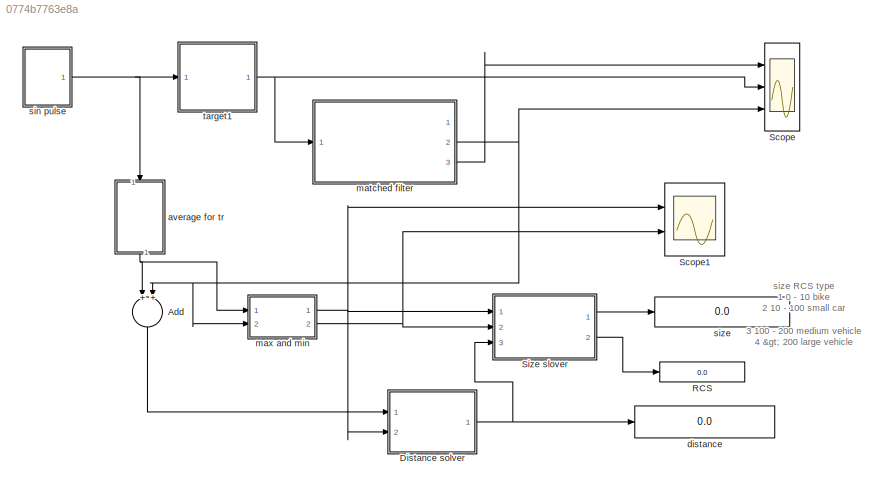
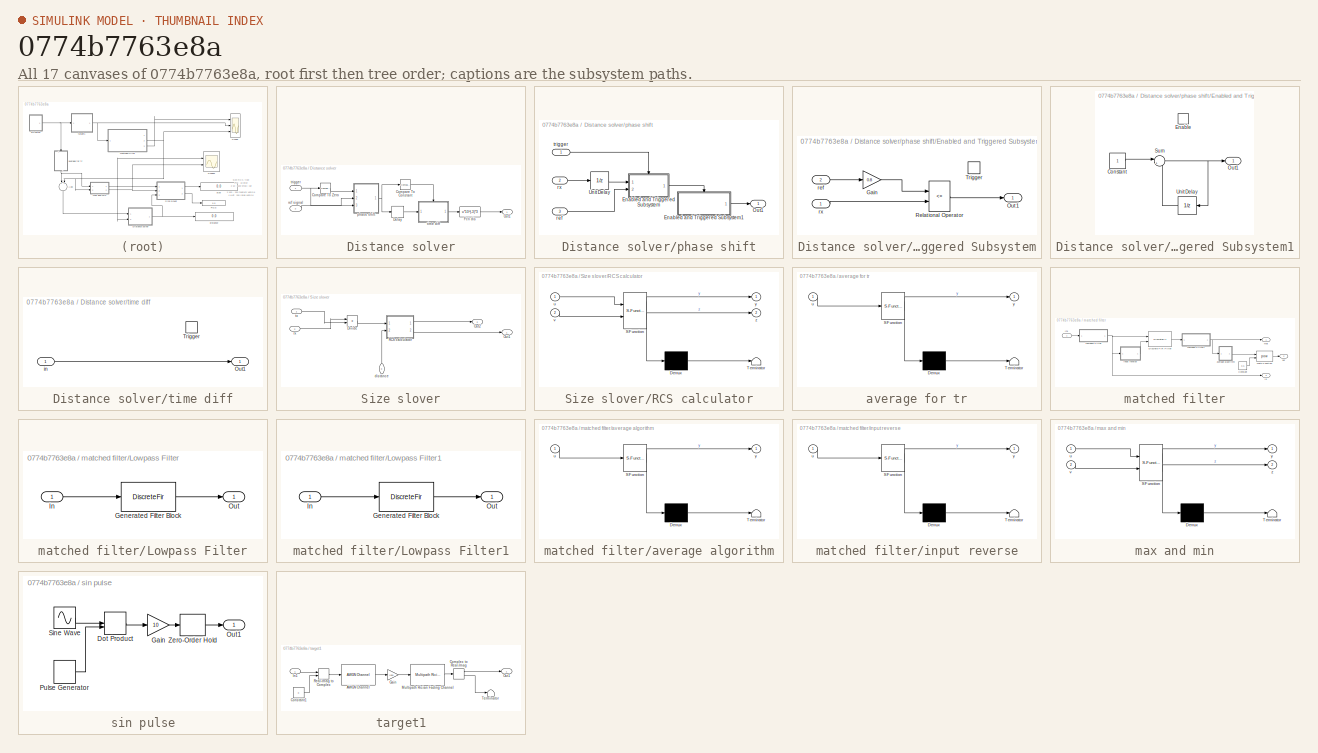
[diagram: thumbnail index - all 17 canvases of the model, root first then tree order]
MODEL slx_0774b7763e8a
KIND model
CONFIG AbsTol = auto
CONFIG EnableMultiTasking = on
CONFIG FixedStep = 2*10^(-11)
CONFIG MaxStep = auto
CONFIG MinStep = auto
CONFIG RelTol = 1e-3
CONFIG SampleTimeConstraint = Unconstrained
CONFIG Solver = FixedStepAuto
CONFIG SolverName = FixedStepAuto
CONFIG StartTime = 0.0
CONFIG StopTime = 10^(-6)
BLOCK [Sum] Add
  InputSameDT = off
  OutDataTypeStr = Inherit: Inherit via internal rule
  Ports = [2, 1]
  SaturateOnIntegerOverflow = off
BLOCK [SubSystem] Distance solver
  Ports = [2, 1]
  RequestExecContextInheritance = off
  Variant = off
BLOCK [Reference] Distance solver/Compare To Constant  REF=simulink/Logic and Bit
Operations/Compare
To Constant
  Ports = [1, 1]
  SourceBlock = simulink/Logic and Bit\nOperations/Compare\nTo Constant
  SourceType = Compare To Constant
BLOCK [Reference] Distance solver/Compare To Zero  REF=simulink/Logic and Bit
Operations/Compare
To Zero
  Ports = [1, 1]
  SourceBlock = simulink/Logic and Bit\nOperations/Compare\nTo Zero
  SourceType = Compare To Zero
BLOCK [Delay] Distance solver/Delay
  DelayLength = 1
  InitialCondition = 0
  InputPortMap = u0
  Ports = [1, 1]
BLOCK [Fcn] Distance solver/Fcn dis
  Expr = u*10^(-3)*3
BLOCK [Outport] Distance solver/Out1
  IconDisplay = Port number
BLOCK [SubSystem] Distance solver/phase shift
  Ports = [3, 1]
  RequestExecContextInheritance = off
  Variant = off
BLOCK [SubSystem] Distance solver/phase shift/Enabled and Triggered Subsystem
  Ports = [2, 1, 0, 1]
  RequestExecContextInheritance = off
  TreatAsAtomicUnit = on
  Variant = off
BLOCK [Gain] Distance solver/phase shift/Enabled and Triggered Subsystem/Gain
  Gain = 0.8
  OutDataTypeStr = Inherit: Inherit via internal rule
  ParamDataTypeStr = Inherit: Inherit via internal rule
  SaturateOnIntegerOverflow = off
BLOCK [Outport] Distance solver/phase shift/Enabled and Triggered Subsystem/Out1
  IconDisplay = Port number
BLOCK [RelationalOperator] Distance solver/phase shift/Enabled and Triggered Subsystem/Relational Operator
  InputSameDT = off
  Operator = <=
  OutDataTypeStr = boolean
  Ports = [2, 1]
BLOCK [TriggerPort] Distance solver/phase shift/Enabled and Triggered Subsystem/Trigger
  Ports = []
  StatesWhenEnabling = held
  TriggerType = falling
  VariantControl = Variant
BLOCK [Inport] Distance solver/phase shift/Enabled and Triggered Subsystem/ref
  IconDisplay = Port number
  Port = 2
BLOCK [Inport] Distance solver/phase shift/Enabled and Triggered Subsystem/rx
  IconDisplay = Port number
BLOCK [SubSystem] Distance solver/phase shift/Enabled and Triggered Subsystem1
  Ports = [0, 1, 1]
  RequestExecContextInheritance = off
  TreatAsAtomicUnit = on
  Variant = off
BLOCK [Constant] Distance solver/phase shift/Enabled and Triggered Subsystem1/Constant
BLOCK [EnablePort] Distance solver/phase shift/Enabled and Triggered Subsystem1/Enable
  Ports = []
  StatesWhenEnabling = reset
BLOCK [Outport] Distance solver/phase shift/Enabled and Triggered Subsystem1/Out1
  IconDisplay = Port number
BLOCK [Sum] Distance solver/phase shift/Enabled and Triggered Subsystem1/Sum
  IconShape = round
  InputSameDT = off
  Inputs = |++
  OutDataTypeStr = Inherit: Inherit via internal rule
  Ports = [2, 1]
  SaturateOnIntegerOverflow = off
BLOCK [UnitDelay] Distance solver/phase shift/Enabled and Triggered Subsystem1/Unit Delay
  InputProcessing = Elements as channels (sample based)
  SampleTime = -1
BLOCK [Outport] Distance solver/phase shift/Out1
  IconDisplay = Port number
BLOCK [UnitDelay] Distance solver/phase shift/Unit Delay
  InputProcessing = Elements as channels (sample based)
  SampleTime = -1
BLOCK [Inport] Distance solver/phase shift/ref
  IconDisplay = Port number
  Port = 3
BLOCK [Inport] Distance solver/phase shift/rx
  IconDisplay = Port number
  Port = 2
BLOCK [Inport] Distance solver/phase shift/trigger
  IconDisplay = Port number
BLOCK [Inport] Distance solver/ref signal
  IconDisplay = Port number
  Port = 2
BLOCK [SubSystem] Distance solver/time diff
  Ports = [1, 1, 0, 1]
  RequestExecContextInheritance = off
  TreatAsAtomicUnit = on
  Variant = off
BLOCK [Outport] Distance solver/time diff/Out1
  IconDisplay = Port number
BLOCK [TriggerPort] Distance solver/time diff/Trigger
  Ports = []
  StatesWhenEnabling = held
  VariantControl = Variant
  ZeroCross = off
BLOCK [Inport] Distance solver/time diff/in
  IconDisplay = Port number
BLOCK [Inport] Distance solver/trigger
  IconDisplay = Port number
BLOCK [Display] RCS
  Decimation = 1
  Ports = [1]
BLOCK [Scope] Scope
  NumInputPorts = 3
  Ports = [3]
  ScopeSpecificationString = Simulink.scopes.TimeScopeBlockCfg('CurrentConfiguration', extmgr.ConfigurationSet(extmgr.Configuration('Core','General UI',true),extmgr.Configuration('Core','Source UI',true),extmgr.Configuration('Sources','WiredSimulink',true,'DataLoggingVariableName','ScopeData1'),extmgr.Configuration('Visuals','Time Domain',true,'SerializedDisplays',{struct('MinYLimReal','-0.0000011','MaxYLimReal','0.0000011','...<+2791ch>
BLOCK [Scope] Scope1
  NumInputPorts = 2
  Ports = [2]
  ScopeSpecificationString = Simulink.scopes.TimeScopeBlockCfg('CurrentConfiguration', extmgr.ConfigurationSet(extmgr.Configuration('Core','General UI',true),extmgr.Configuration('Core','Source UI',true),extmgr.Configuration('Sources','WiredSimulink',true,'DataLoggingVariableName','ScopeData1'),extmgr.Configuration('Visuals','Time Domain',true,'SerializedDisplays',{struct('MinYLimReal','-1.1295','MaxYLimReal','0.16554','YLabe...<+1983ch>
BLOCK [SubSystem] Size slover
  Ports = [3, 2]
  RequestExecContextInheritance = off
  Variant = off
BLOCK [Product] Size slover/Divide
  InputSameDT = off
  Inputs = */
  OutDataTypeStr = Inherit: Inherit via internal rule
  Ports = [2, 1]
  RndMeth = Floor
  SaturateOnIntegerOverflow = off
BLOCK [Outport] Size slover/Out1
  IconDisplay = Port number
BLOCK [Outport] Size slover/Out2
  IconDisplay = Port number
  Port = 2
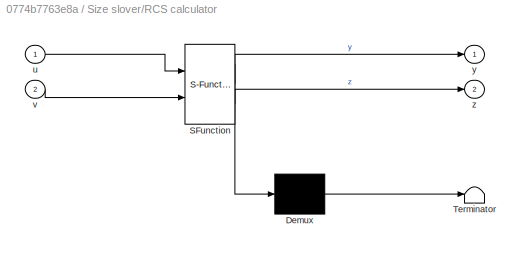
BLOCK [SubSystem] Size slover/RCS calculator
  ErrorFcn = Stateflow.Translate.translate
  PermitHierarchicalResolution = ExplicitOnly
  Ports = [2, 2]
  RequestExecContextInheritance = off
  SFBlockType = MATLAB Function
  TreatAsAtomicUnit = on
  Variant = off
BLOCK [Demux] Size slover/RCS calculator/ Demux 
  Outputs = 1
  Ports = [1, 1]
BLOCK [S-Function] Size slover/RCS calculator/ SFunction 
  EnableBusSupport = on
  FunctionName = sf_sfun
  PortCounts = [2 3]
  Ports = [2, 3]
  SFcnIsStateOwnerBlock = off
  SFunctionDeploymentMode = off
  Tag = Stateflow S-Function TP_target_sin 5
BLOCK [Terminator] Size slover/RCS calculator/ Terminator 
BLOCK [Inport] Size slover/RCS calculator/u
  IconDisplay = Port number
BLOCK [Inport] Size slover/RCS calculator/v
  IconDisplay = Port number
  Port = 2
BLOCK [Outport] Size slover/RCS calculator/y
  IconDisplay = Port number
BLOCK [Outport] Size slover/RCS calculator/z
  IconDisplay = Port number
  Port = 2
BLOCK [Inport] Size slover/distance
  IconDisplay = Port number
  Port = 3
BLOCK [Inport] Size slover/rx
  IconDisplay = Port number
  Port = 2
BLOCK [Inport] Size slover/tx
  IconDisplay = Port number
BLOCK [SubSystem] average for tr
  ErrorFcn = Stateflow.Translate.translate
  PermitHierarchicalResolution = ExplicitOnly
  Ports = [1, 1]
  RequestExecContextInheritance = off
  SFBlockType = MATLAB Function
  TreatAsAtomicUnit = on
  Variant = off
BLOCK [Demux] average for tr/ Demux 
  Outputs = 1
  Ports = [1, 1]
BLOCK [S-Function] average for tr/ SFunction 
  EnableBusSupport = on
  FunctionName = sf_sfun
  PortCounts = [1 2]
  Ports = [1, 2]
  SFcnIsStateOwnerBlock = off
  SFunctionDeploymentMode = off
  Tag = Stateflow S-Function TP_target_sin 3
BLOCK [Terminator] average for tr/ Terminator 
BLOCK [Inport] average for tr/u
  IconDisplay = Port number
BLOCK [Outport] average for tr/y
  IconDisplay = Port number
BLOCK [Display] distance
  Decimation = 1
  Ports = [1]
BLOCK [SubSystem] matched filter
  Ports = [1, 3]
  RequestExecContextInheritance = off
  Variant = off
BLOCK [Constant] matched filter/Constant
  Value = 0.5
BLOCK [DiscreteFir] matched filter/Discrete FIR Filter
  CoefSource = Input port
  Coefficients = [1 1 1 1 1 1]
  InputPortMap = u0,u1
  InputProcessing = Columns as channels (frame based)
  OutputPortMap = o0
  Ports = [2, 1]
BLOCK [Inport] matched filter/In1
  IconDisplay = Port number
BLOCK [SubSystem] matched filter/Lowpass Filter
  CopyFcn = fdesignblkfcn(gcbh, {'CopyFcn'});
  DialogController = fdesignblkfcn
  InitFcn = fdesignblkfcn(gcbh, {'InitFcn'});
  Ports = [1, 1]
  RequestExecContextInheritance = off
  UserDataPersistent = on
  Variant = off
BLOCK [DiscreteFir] matched filter/Lowpass Filter/Generated Filter Block
  Coefficients = [-0.00882242952209379323 -0.00250396131135136295 0.0203488178406029327 0.00845153638179320724 -0.00156508516764006927 0.0105860024294243335 -0.00352454868452364151 0.00077576045905514146 0.00717622040828255932 -0.00940111963814425564 0.00797382618152611515 -0.000273978864866431318 -0.00850196312346529828 0.0141906978084733945 -0.0119506479715848612 0.00181855656901186435 0.0118184144727089858 -0.0...<+977ch>
  InputPortMap = u0
  InputProcessing = Columns as channels (frame based)
  OutputPortMap = o0
  Ports = [1, 1]
  Tag = BlockMethodSubSystem
BLOCK [Inport] matched filter/Lowpass Filter/In
  IconDisplay = Port number
BLOCK [Outport] matched filter/Lowpass Filter/Out
  IconDisplay = Port number
BLOCK [SubSystem] matched filter/Lowpass Filter1
  CopyFcn = fdesignblkfcn(gcbh, {'CopyFcn'});
  DialogController = fdesignblkfcn
  InitFcn = fdesignblkfcn(gcbh, {'InitFcn'});
  Ports = [1, 1]
  RequestExecContextInheritance = off
  UserDataPersistent = on
  Variant = off
BLOCK [DiscreteFir] matched filter/Lowpass Filter1/Generated Filter Block
  Coefficients = [-0.00882242952209379323 -0.00250396131135136295 0.0203488178406029327 0.00845153638179320724 -0.00156508516764006927 0.0105860024294243335 -0.00352454868452364151 0.00077576045905514146 0.00717622040828255932 -0.00940111963814425564 0.00797382618152611515 -0.000273978864866431318 -0.00850196312346529828 0.0141906978084733945 -0.0119506479715848612 0.00181855656901186435 0.0118184144727089858 -0.0...<+977ch>
  InputPortMap = u0
  InputProcessing = Columns as channels (frame based)
  OutputPortMap = o0
  Ports = [1, 1]
  Tag = BlockMethodSubSystem
BLOCK [Inport] matched filter/Lowpass Filter1/In
  IconDisplay = Port number
BLOCK [Outport] matched filter/Lowpass Filter1/Out
  IconDisplay = Port number
BLOCK [Math] matched filter/Math Function
  Operator = pow
  Ports = [2, 1]
BLOCK [SubSystem] matched filter/average algorithm
  ErrorFcn = Stateflow.Translate.translate
  PermitHierarchicalResolution = ExplicitOnly
  Ports = [1, 1]
  RequestExecContextInheritance = off
  SFBlockType = MATLAB Function
  TreatAsAtomicUnit = on
  Variant = off
BLOCK [Demux] matched filter/average algorithm/ Demux 
  Outputs = 1
  Ports = [1, 1]
BLOCK [S-Function] matched filter/average algorithm/ SFunction 
  EnableBusSupport = on
  FunctionName = sf_sfun
  PortCounts = [1 2]
  Ports = [1, 2]
  SFcnIsStateOwnerBlock = off
  SFunctionDeploymentMode = off
  Tag = Stateflow S-Function TP_target_sin 1
BLOCK [Terminator] matched filter/average algorithm/ Terminator 
BLOCK [Inport] matched filter/average algorithm/u
  IconDisplay = Port number
BLOCK [Outport] matched filter/average algorithm/y
  IconDisplay = Port number
BLOCK [Outport] matched filter/avr
  IconDisplay = Port number
  Port = 2
BLOCK [SubSystem] matched filter/input reverse
  ErrorFcn = Stateflow.Translate.translate
  PermitHierarchicalResolution = ExplicitOnly
  Ports = [1, 1]
  RequestExecContextInheritance = off
  SFBlockType = MATLAB Function
  TreatAsAtomicUnit = on
  Variant = off
BLOCK [Demux] matched filter/input reverse/ Demux 
  Outputs = 1
  Ports = [1, 1]
BLOCK [S-Function] matched filter/input reverse/ SFunction 
  EnableBusSupport = on
  FunctionName = sf_sfun
  PortCounts = [1 2]
  Ports = [1, 2]
  SFcnIsStateOwnerBlock = off
  SFunctionDeploymentMode = off
  Tag = Stateflow S-Function TP_target_sin 2
BLOCK [Terminator] matched filter/input reverse/ Terminator 
BLOCK [Inport] matched filter/input reverse/u
  IconDisplay = Port number
BLOCK [Outport] matched filter/input reverse/y
  IconDisplay = Port number
BLOCK [Outport] matched filter/lp
  IconDisplay = Port number
  Port = 3
BLOCK [Outport] matched filter/mat
  IconDisplay = Port number
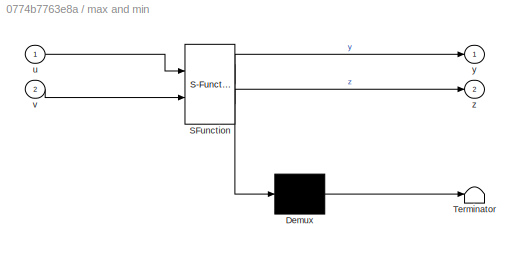
BLOCK [SubSystem] max and min
  ErrorFcn = Stateflow.Translate.translate
  PermitHierarchicalResolution = ExplicitOnly
  Ports = [2, 2]
  RequestExecContextInheritance = off
  SFBlockType = MATLAB Function
  TreatAsAtomicUnit = on
  Variant = off
BLOCK [Demux] max and min/ Demux 
  Outputs = 1
  Ports = [1, 1]
BLOCK [S-Function] max and min/ SFunction 
  EnableBusSupport = on
  FunctionName = sf_sfun
  PortCounts = [2 3]
  Ports = [2, 3]
  SFcnIsStateOwnerBlock = off
  SFunctionDeploymentMode = off
  Tag = Stateflow S-Function TP_target_sin 4
BLOCK [Terminator] max and min/ Terminator 
BLOCK [Inport] max and min/u
  IconDisplay = Port number
BLOCK [Inport] max and min/v
  IconDisplay = Port number
  Port = 2
BLOCK [Outport] max and min/y
  IconDisplay = Port number
BLOCK [Outport] max and min/z
  IconDisplay = Port number
  Port = 2
BLOCK [SubSystem] sin pulse
  Ports = [0, 1]
  RequestExecContextInheritance = off
  Variant = off
BLOCK [DotProduct] sin pulse/Dot Product
  OutDataTypeStr = Inherit: Inherit via internal rule
BLOCK [Gain] sin pulse/Gain
  Gain = 10
  OutDataTypeStr = Inherit: Inherit via internal rule
  ParamDataTypeStr = Inherit: Inherit via internal rule
  SaturateOnIntegerOverflow = off
BLOCK [Outport] sin pulse/Out1
  IconDisplay = Port number
BLOCK [DiscretePulseGenerator] sin pulse/Pulse Generator
  Amplitude = 0.004
  Period = 15000
  Ports = [0, 1]
  PulseWidth = 500
  SampleTime = 2*10^(-11)
BLOCK [Sin] sin pulse/Sine Wave
  Frequency = 1000000000*2*pi
  Ports = [0, 1]
  SampleTime = 0
BLOCK [ZeroOrderHold] sin pulse/Zero-Order Hold
  SampleTime = 2*10^(-11)
BLOCK [Display] size
  Decimation = 1
  Ports = [1]
BLOCK [SubSystem] target1
  Ports = [1, 1]
  RequestExecContextInheritance = off
  Variant = off
BLOCK [Reference] target1/AWGN Channel  REF=commchan3/AWGN
Channel
  Ports = [1, 1]
  SourceBlock = commchan3/AWGN\nChannel
  SourceType = AWGN Channel
  UserDataPersistent = on
BLOCK [ComplexToRealImag] target1/Complex to Real-Imag
  Ports = [1, 2]
BLOCK [Constant] target1/Constant1
  Value = 0
BLOCK [Gain] target1/Gain
  Gain = loss
  OutDataTypeStr = Inherit: Inherit via internal rule
  ParamDataTypeStr = Inherit: Inherit via internal rule
  SaturateOnIntegerOverflow = off
BLOCK [Inport] target1/In1
  IconDisplay = Port number
BLOCK [Reference] target1/Multipath Rician Fading Channel  REF=commchan3/Multipath Rician
Fading Channel
  Ports = [1, 1]
  SourceBlock = commchan3/Multipath Rician\nFading Channel
  SourceType = Multipath Rician Fading Channel
BLOCK [Outport] target1/Out1
  IconDisplay = Port number
BLOCK [RealImagToComplex] target1/Real-Imag to Complex
  Ports = [2, 1]
BLOCK [Terminator] target1/Terminator
ANNOTATION (root): size RCS type 1 0 - 10 bike 2 10 - 100 small car 3 100 - 200 medium vehicle 4 > 200 large vehicle
LINE Add:1 -> Distance solver:1
LINE Distance solver/Compare To Constant:1 -> Distance solver/time diff:trigger
LINE Distance solver/Compare To Zero:1 -> Distance solver/phase shift:1
LINE Distance solver/Delay:1 -> Distance solver/time diff:1
LINE Distance solver/Fcn dis:1 -> Distance solver/Out1:1
LINE Distance solver/phase shift/Enabled and Triggered Subsystem/Gain:1 -> Distance solver/phase shift/Enabled and Triggered Subsystem/Relational Operator:1
LINE Distance solver/phase shift/Enabled and Triggered Subsystem/Relational Operator:1 -> Distance solver/phase shift/Enabled and Triggered Subsystem/Out1:1
LINE Distance solver/phase shift/Enabled and Triggered Subsystem/ref:1 -> Distance solver/phase shift/Enabled and Triggered Subsystem/Gain:1
LINE Distance solver/phase shift/Enabled and Triggered Subsystem/rx:1 -> Distance solver/phase shift/Enabled and Triggered Subsystem/Relational Operator:2
LINE Distance solver/phase shift/Enabled and Triggered Subsystem1/Constant:1 -> Distance solver/phase shift/Enabled and Triggered Subsystem1/Sum:1
NET Distance solver/phase shift/Enabled and Triggered Subsystem1/Sum:1 -> Distance solver/phase shift/Enabled and Triggered Subsystem1/Out1:1, Distance solver/phase shift/Enabled and Triggered Subsystem1/Unit Delay:1
LINE Distance solver/phase shift/Enabled and Triggered Subsystem1/Unit Delay:1 -> Distance solver/phase shift/Enabled and Triggered Subsystem1/Sum:2
LINE Distance solver/phase shift/Enabled and Triggered Subsystem1:1 -> Distance solver/phase shift/Out1:1
LINE Distance solver/phase shift/Enabled and Triggered Subsystem:1 -> Distance solver/phase shift/Enabled and Triggered Subsystem1:enable
LINE Distance solver/phase shift/Unit Delay:1 -> Distance solver/phase shift/Enabled and Triggered Subsystem:1
LINE Distance solver/phase shift/ref:1 -> Distance solver/phase shift/Enabled and Triggered Subsystem:2
LINE Distance solver/phase shift/rx:1 -> Distance solver/phase shift/Unit Delay:1
LINE Distance solver/phase shift/trigger:1 -> Distance solver/phase shift/Enabled and Triggered Subsystem:trigger
NET Distance solver/phase shift:1 -> Distance solver/Compare To Constant:1, Distance solver/Delay:1
LINE Distance solver/ref signal:1 -> Distance solver/phase shift:3
LINE Distance solver/time diff/in:1 -> Distance solver/time diff/Out1:1
LINE Distance solver/time diff:1 -> Distance solver/Fcn dis:1
NET Distance solver/trigger:1 -> Distance solver/Compare To Zero:1, Distance solver/phase shift:2
NET Distance solver:1 -> Size slover:3, distance:1
LINE Size slover/Divide:1 -> Size slover/RCS calculator:1
LINE Size slover/RCS calculator:1 -> Size slover/Out2:1
LINE Size slover/RCS calculator:2 -> Size slover/Out1:1
LINE Size slover/distance:1 -> Size slover/RCS calculator:2
LINE Size slover/rx:1 -> Size slover/Divide:1
LINE Size slover/tx:1 -> Size slover/Divide:2
LINE Size slover:1 -> size:1
LINE Size slover:2 -> RCS:1
NET average for tr:1 -> Add:1, max and min:1
LINE matched filter/Constant:1 -> matched filter/Math Function:2
LINE matched filter/Discrete FIR Filter:1 -> matched filter/Lowpass Filter1:1
LINE matched filter/In1:1 -> matched filter/Lowpass Filter:1
NET matched filter/Lowpass Filter1:1 -> matched filter/average algorithm:1, matched filter/mat:1
NET matched filter/Lowpass Filter:1 -> matched filter/Discrete FIR Filter:1, matched filter/input reverse:1, matched filter/lp:1
LINE matched filter/Math Function:1 -> matched filter/avr:1
LINE matched filter/average algorithm:1 -> matched filter/Math Function:1
LINE matched filter/input reverse:1 -> matched filter/Discrete FIR Filter:2
NET matched filter:2 -> Add:2, Scope:3, max and min:2
LINE matched filter:3 -> Scope:1
NET max and min:1 -> Distance solver:2, Scope1:1, Size slover:1
NET max and min:2 -> Scope1:2, Size slover:2
LINE sin pulse/Dot Product:1 -> sin pulse/Gain:1
LINE sin pulse/Gain:1 -> sin pulse/Zero-Order Hold:1
LINE sin pulse/Pulse Generator:1 -> sin pulse/Dot Product:2
LINE sin pulse/Sine Wave:1 -> sin pulse/Dot Product:1
LINE sin pulse/Zero-Order Hold:1 -> sin pulse/Out1:1
NET sin pulse:1 -> average for tr:1, target1:1
LINE target1/AWGN Channel:1 -> target1/Gain:1
LINE target1/Complex to Real-Imag:1 -> target1/Out1:1
LINE target1/Complex to Real-Imag:2 -> target1/Terminator:1
LINE target1/Constant1:1 -> target1/Real-Imag to Complex:2
LINE target1/Gain:1 -> target1/Multipath Rician Fading Channel:1
LINE target1/In1:1 -> target1/Real-Imag to Complex:1
LINE target1/Multipath Rician Fading Channel:1 -> target1/Complex to Real-Imag:1
LINE target1/Real-Imag to Complex:1 -> target1/AWGN Channel:1
NET target1:1 -> Scope:2, matched filter:1
note: NET lines group one-source signal fan-out (src -> all destinations, sorted); 1:1 wires keep LINE
CHART matched filter/average algorithm states=1 transitions=1
  STATE_LABEL 'eML_blk_kernel()'
  STATE_LABEL 'SCRIPT:\nfunction y = fcn(u)\n%#codegen\npersistent summ;\npersistent maxm;\nn = 200;\n\nif isempty(maxm)\n    maxm = -1;\nend\n\nif isempty(summ)\n    summ = zeros(1,n);\nend\n\nif u > max(summ)\n    maxm = u;\nend\n\nif (u < 0.7*maxm)\n    y = 0;\nelse\n    summ = circshift(summ,[0,1]);\n    summ(1) = u;\n    y = sum(summ) / n;\nend\n'
CHART matched filter/input reverse states=1 transitions=1
  STATE_LABEL 'eML_blk_kernel()'
  STATE_LABEL 'SCRIPT:\nfunction y = fcn(u)\n%#codegen\n\ny = u(end:-1:1);'
CHART average for tr states=1 transitions=1
  STATE_LABEL 'eML_blk_kernel()'
  STATE_LABEL 'SCRIPT:\nfunction y = fcn(u)\n%#codegen\npersistent sum;\npersistent n;\npersistent maxm;\n\nif isempty(maxm)\n    maxm = -1;\nend\n\nif isempty(sum)\n    sum = 0;\nend\n\nif isempty(n)\n    n = 0;\nend\n\nif u > maxm\n    maxm = u;\nend\n\nif (u < 0.7*maxm)\n    y = 0;\nelse\n    sum = sum + u;\n    n = n + 1;\n    y = sum / n;\nend\n'
CHART max and min states=1 transitions=1
  STATE_LABEL 'eML_blk_kernel()'
  STATE_LABEL 'SCRIPT:\nfunction [y,z] = fcn(u,v)\n%#codegen\npersistent maxm;\npersistent minm;\n\nif isempty(maxm)\n    maxm = -1;\nend\n\nif isempty(minm)\n    minm = -1;\nend\n\nif u > 0\n    maxm = u;\nend\n\nif v > 0\n    minm = v;\nend\n\ny = maxm;\nz = minm;'
CHART Size slover/RCS calculator states=1 transitions=1
  STATE_LABEL 'eML_blk_kernel()'
  STATE_LABEL "SCRIPT:\nfunction [y,z] = fcn(u,v)\n%#codegen\nG = 10;\nw = 0.3;\ny = 1.69 * u * ((4 * pi)^3 * v^4)/(G^2 *  w^2);\nif y < 10\n    z = 1;%'bike';\nelseif y < 100\n    z = 2;%'small car';\nelseif y < 200\n    z = 3;%'SUV or small truck';\nelse\n    z = 4;%'truck';\nend"
